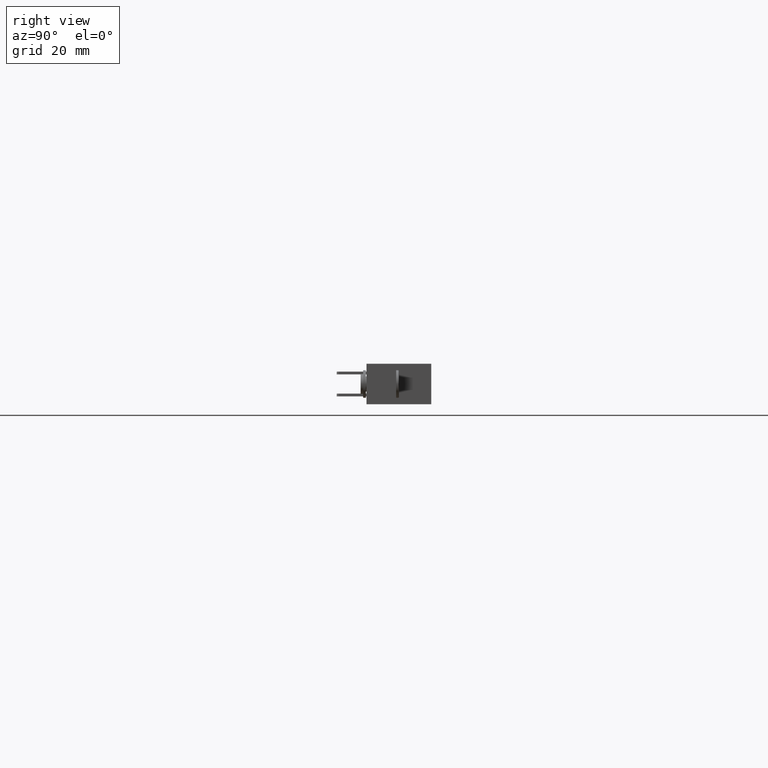
[diagram: clean part render]
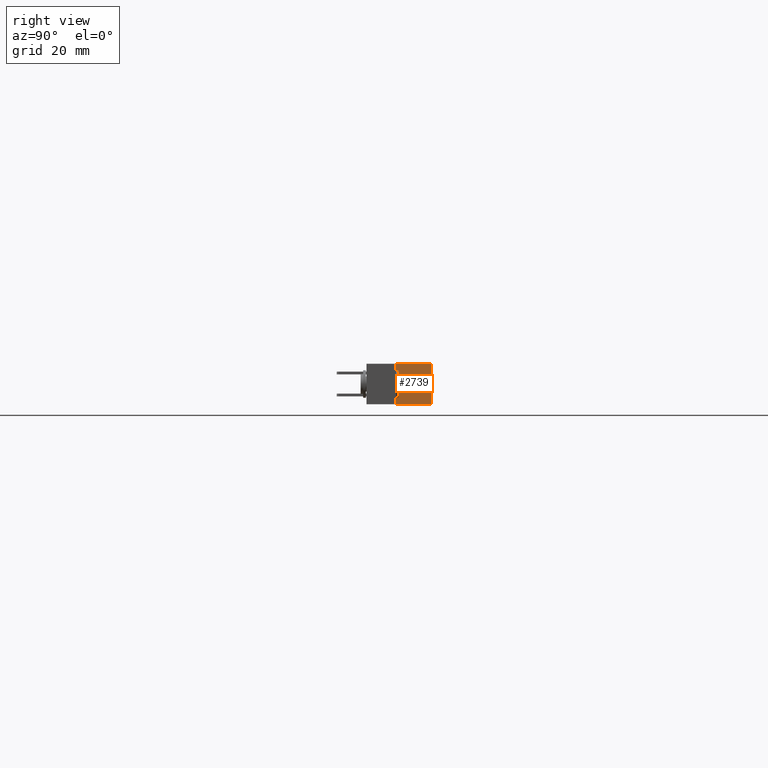
[diagram: same view with one face highlighted and labeled with its STEP entity id]
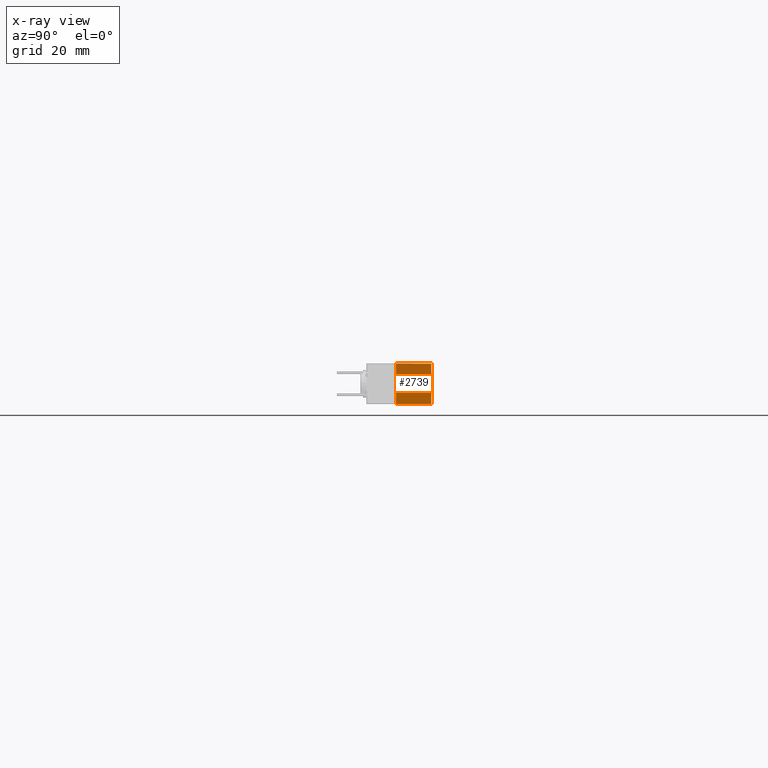
[diagram: x-ray of the same camera — body ghosted, the highlighted face saturated]
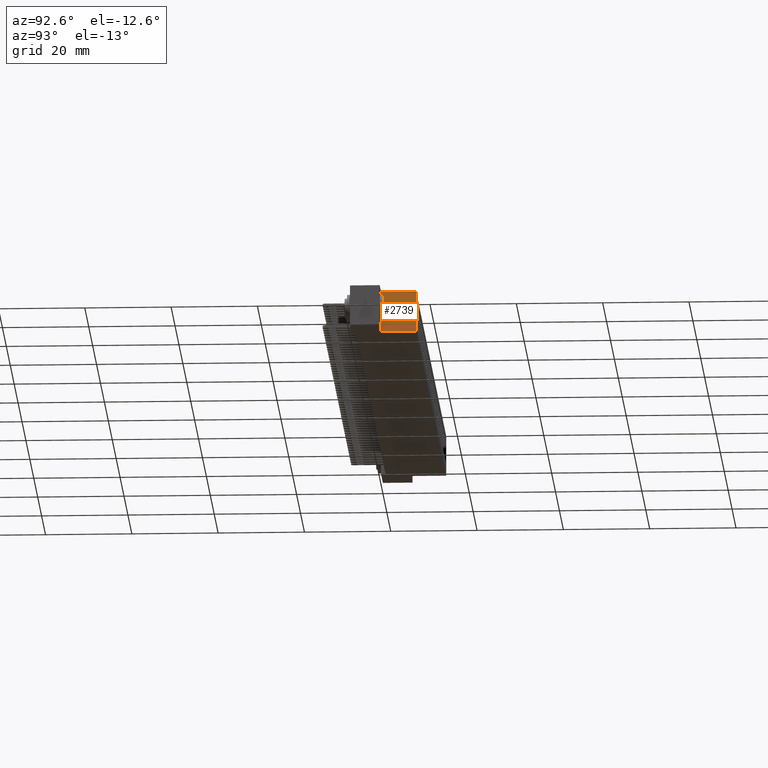
[diagram: same view with one face highlighted and labeled with its STEP entity id]
A machine part, right view. The second image highlights one B-rep face of the part: STEP entity #2739.
The next image is the same camera in x-ray: the body ghosted, the highlighted face saturated — about 0% of this face is hidden behind the body in this view.
A second angle (auxiliary view) of the same face is appended — the face is thin or edge-on in the first view.
In plain terms, the highlighted planar face has unit normal (-1, 0, 0).
Its self-contained STEP definition (entity closure, byte-faithful):
#363 = VERTEX_POINT ( 'NONE', #33381 ) ;
#2438 = CARTESIAN_POINT ( 'NONE',  ( 6.323000000000002200, 0.2699999999999999600, -0.3700000000000007700 ) ) ;
#2482 = DIRECTION ( 'NONE',  ( -0.0000000000000000000, 1.000000000000000000, -0.0000000000000000000 ) ) ;
#2739 = ADVANCED_FACE ( 'NONE', ( #10560 ), #11325, .F. ) ;
#6104 = LINE ( 'NONE', #2438, #21681 ) ;
#6127 = EDGE_LOOP ( 'NONE', ( #17961, #32302, #27529, #15662 ) ) ;
#8850 = EDGE_CURVE ( 'NONE', #26540, #15591, #6104, .T. ) ;
#9242 = CARTESIAN_POINT ( 'NONE',  ( 6.323000000000002200, 0.2699999999999999600, -7.573828129326808200E-016 ) ) ;
#10560 = FACE_OUTER_BOUND ( 'NONE', #6127, .T. ) ;
#11325 = PLANE ( 'NONE',  #25832 ) ;
#12020 = DIRECTION ( 'NONE',  ( -0.0000000000000000000, 1.000000000000000000, -0.0000000000000000000 ) ) ;
#13976 = LINE ( 'NONE', #24735, #35187 ) ;
#15591 = VERTEX_POINT ( 'NONE', #17898 ) ;
#15662 = ORIENTED_EDGE ( 'NONE', *, *, #8850, .T. ) ;
#16211 = EDGE_CURVE ( 'NONE', #363, #33856, #25262, .T. ) ;
#17326 = DIRECTION ( 'NONE',  ( -1.000000000000000000, 0.0000000000000000000, 0.0000000000000000000 ) ) ;
#17898 = CARTESIAN_POINT ( 'NONE',  ( 6.323000000000002200, 0.5899999999999999700, -0.3700000000000000000 ) ) ;
#17961 = ORIENTED_EDGE ( 'NONE', *, *, #34431, .T. ) ;
#18945 = DIRECTION ( 'NONE',  ( 0.0000000000000000000, 0.0000000000000000000, 1.000000000000000000 ) ) ;
#19184 = DIRECTION ( 'NONE',  ( 0.0000000000000000000, 0.0000000000000000000, 1.000000000000000000 ) ) ;
#19312 = DIRECTION ( 'NONE',  ( 0.0000000000000000000, 0.0000000000000000000, 1.000000000000000000 ) ) ;
#20559 = VECTOR ( 'NONE', #18945, 39.37007874015748100 ) ;
#21681 = VECTOR ( 'NONE', #2482, 39.37007874015748100 ) ;
#23935 = CARTESIAN_POINT ( 'NONE',  ( 6.323000000000002200, 0.2699999999999999600, -0.3700000000000007700 ) ) ;
#24361 = CARTESIAN_POINT ( 'NONE',  ( 6.323000000000002200, 0.2699999999999999600, -0.3700000000000007700 ) ) ;
#24378 = VECTOR ( 'NONE', #12020, 39.37007874015748100 ) ;
#24735 = CARTESIAN_POINT ( 'NONE',  ( 6.323000000000002200, 0.5899999999999999700, -0.3700000000000007700 ) ) ;
#25262 = LINE ( 'NONE', #9242, #24378 ) ;
#25832 = AXIS2_PLACEMENT_3D ( 'NONE', #23935, #17326, #19312 ) ;
#26540 = VERTEX_POINT ( 'NONE', #33918 ) ;
#27529 = ORIENTED_EDGE ( 'NONE', *, *, #32358, .F. ) ;
#28785 = LINE ( 'NONE', #24361, #20559 ) ;
#30205 = CARTESIAN_POINT ( 'NONE',  ( 6.323000000000002200, 0.5899999999999999700, -7.573828129326808200E-016 ) ) ;
#32302 = ORIENTED_EDGE ( 'NONE', *, *, #16211, .F. ) ;
#32358 = EDGE_CURVE ( 'NONE', #26540, #363, #28785, .T. ) ;
#33381 = CARTESIAN_POINT ( 'NONE',  ( 6.323000000000002200, 0.2699999999999999600, -7.573828129326808200E-016 ) ) ;
#33856 = VERTEX_POINT ( 'NONE', #30205 ) ;
#33918 = CARTESIAN_POINT ( 'NONE',  ( 6.323000000000002200, 0.2699999999999999600, -0.3700000000000007700 ) ) ;
#34431 = EDGE_CURVE ( 'NONE', #15591, #33856, #13976, .T. ) ;
#35187 = VECTOR ( 'NONE', #19184, 39.37007874015748100 ) ;